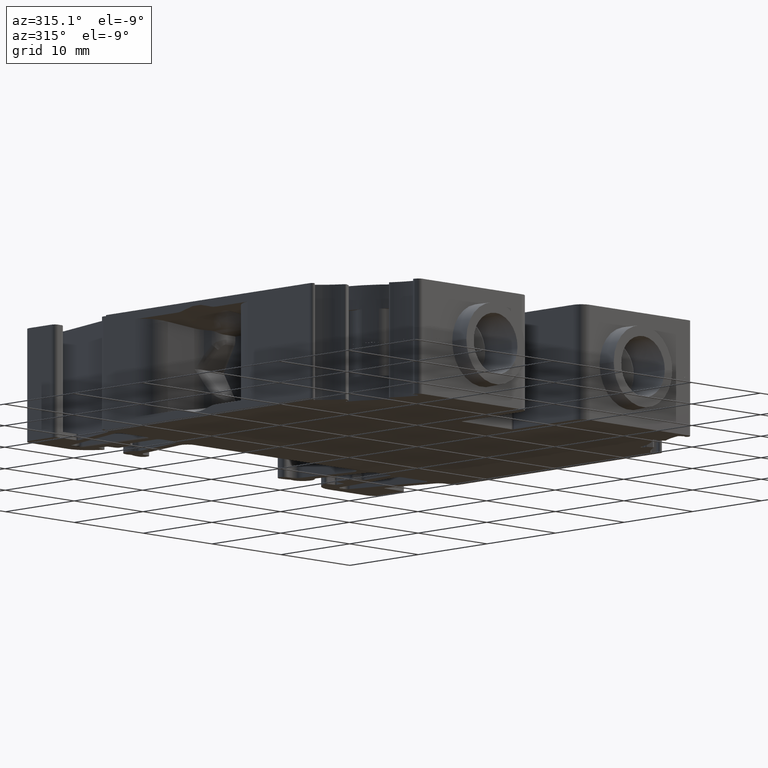
[diagram: clean part render]
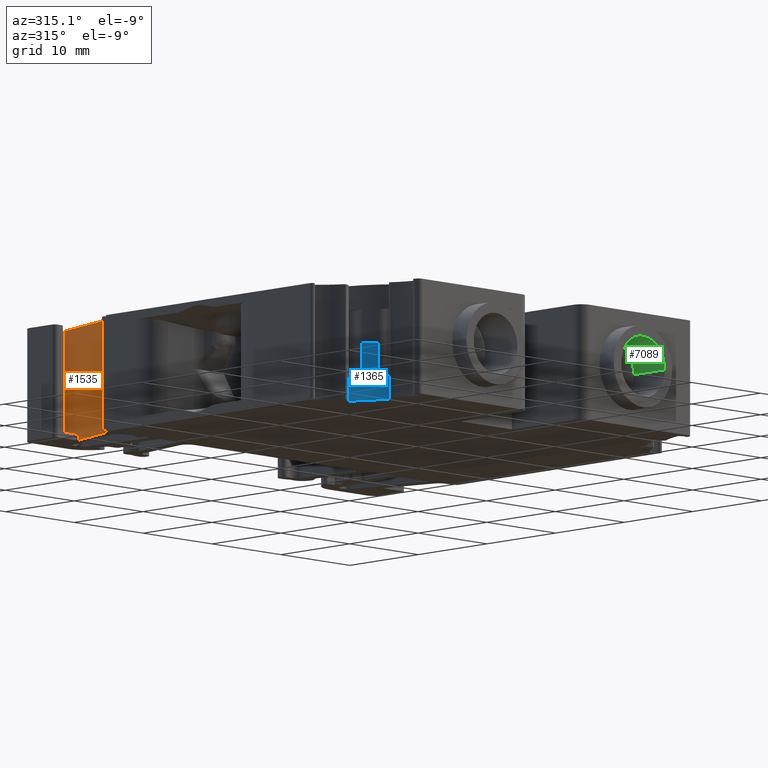
[diagram: same view with three faces highlighted in distinct colors, each labeled with its STEP entity id]
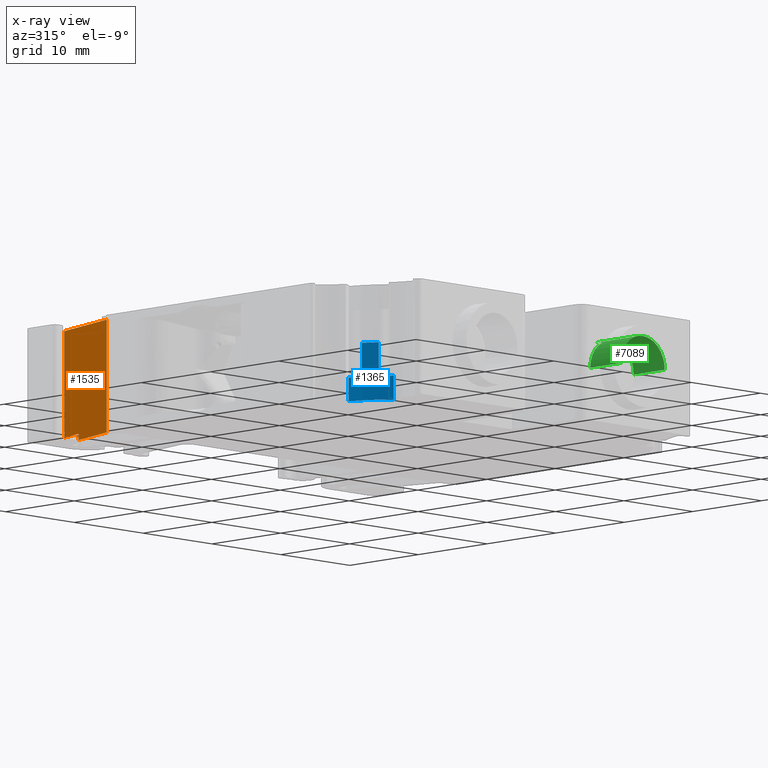
[diagram: x-ray of the same camera — body ghosted, the three highlighted faces saturated]
A machine part, auxiliary view with three faces highlighted in distinct colors.
The next image is the same camera in x-ray (body ghosted, the three faces saturated) — at least one of them is partly hidden behind the body in this view.
Their STEP definitions:

[orange] entity #1535 — the highlighted planar face has unit normal (-0.9659, 0.2588, 0).
#1535 = ADVANCED_FACE ( 'NONE', ( #15957 ), #15951, .T. ) ;
#4270 = ORIENTED_EDGE ( 'NONE', *, *, #15289, .T. ) ;
#4308 = ORIENTED_EDGE ( 'NONE', *, *, #6825, .T. ) ;
#4309 = ORIENTED_EDGE ( 'NONE', *, *, #15282, .F. ) ;
#4334 = ORIENTED_EDGE ( 'NONE', *, *, #6843, .T. ) ;
#4339 = ORIENTED_EDGE ( 'NONE', *, *, #6830, .T. ) ;
#4351 = ORIENTED_EDGE ( 'NONE', *, *, #6826, .T. ) ;
#5548 = CARTESIAN_POINT ( 'NONE',  ( -133.6935660778833600, 241.4713869252328200, -136.6333030996086400 ) ) ;
#5656 = CARTESIAN_POINT ( 'NONE',  ( -131.4353071450694300, 249.9004715235225500, -136.6333030996085500 ) ) ;
#5664 = CARTESIAN_POINT ( 'NONE',  ( -132.1914293156878800, 247.0782009458794700, -148.3828730903680700 ) ) ;
#5697 = CARTESIAN_POINT ( 'NONE',  ( -133.6935660778838400, 241.4713869252331100, -148.3828730903681800 ) ) ;
#6825 = EDGE_CURVE ( 'NONE', #7821, #7811, #13746, .T. ) ;
#6826 = EDGE_CURVE ( 'NONE', #7811, #9007, #13741, .T. ) ;
#6830 = EDGE_CURVE ( 'NONE', #8948, #7821, #13335, .T. ) ;
#6843 = EDGE_CURVE ( 'NONE', #9045, #8854, #13318, .T. ) ;
#7811 = VERTEX_POINT ( 'NONE', #9782 ) ;
#7821 = VERTEX_POINT ( 'NONE', #9811 ) ;
#8854 = VERTEX_POINT ( 'NONE', #5548 ) ;
#8948 = VERTEX_POINT ( 'NONE', #5656 ) ;
#9007 = VERTEX_POINT ( 'NONE', #5664 ) ;
#9045 = VERTEX_POINT ( 'NONE', #5697 ) ;
#9782 = CARTESIAN_POINT ( 'NONE',  ( -132.1914293156878800, 247.0782009458795600, -147.7307757436084900 ) ) ;
#9811 = CARTESIAN_POINT ( 'NONE',  ( -131.4353071450700800, 249.9004715235226400, -147.7307757436084000 ) ) ;
#12777 = B_SPLINE_CURVE_WITH_KNOTS ( 'NONE', 3,
 ( #19028, #19069, #19005, #19071 ),
 .UNSPECIFIED., .F., .F.,
 ( 4, 4 ),
 ( 0.0000000000000000000, 1.000000000000000000 ),
 .UNSPECIFIED. ) ;
#12799 = B_SPLINE_CURVE_WITH_KNOTS ( 'NONE', 3,
 ( #19111, #19107, #19172, #19130 ),
 .UNSPECIFIED., .F., .F.,
 ( 4, 4 ),
 ( 0.0000000000000000000, 1.000000000000000000 ),
 .UNSPECIFIED. ) ;
#13218 = VECTOR ( 'NONE', #13734, 1000.000000000000000 ) ;
#13220 = VECTOR ( 'NONE', #13333, 1000.000000000000000 ) ;
#13225 = VECTOR ( 'NONE', #13365, 1000.000000000000000 ) ;
#13227 = VECTOR ( 'NONE', #13737, 1000.000000000000000 ) ;
#13318 = LINE ( 'NONE', #13381, #13225 ) ;
#13333 = DIRECTION ( 'NONE',  ( -5.022720691121513300E-014, 1.345650732946167600E-014, -1.000000000000000000 ) ) ;
#13335 = LINE ( 'NONE', #13337, #13220 ) ;
#13337 = CARTESIAN_POINT ( 'NONE',  ( -131.4353071450694300, 249.9004715235225800, -135.1833561645780200 ) ) ;
#13365 = DIRECTION ( 'NONE',  ( 5.022720691121513300E-014, -1.345650732946167600E-014, 1.000000000000000000 ) ) ;
#13381 = CARTESIAN_POINT ( 'NONE',  ( -133.6935660778831900, 241.4713869252329300, -135.1833561645780200 ) ) ;
#13731 = CARTESIAN_POINT ( 'NONE',  ( -129.0966246622976100, 258.6297417632577000, -147.7307757436084000 ) ) ;
#13734 = DIRECTION ( 'NONE',  ( -0.2587861696880448500, -0.9659346346302064600, 0.0000000000000000000 ) ) ;
#13737 = DIRECTION ( 'NONE',  ( -5.022720691121513300E-014, 1.345650732946167600E-014, -1.000000000000000000 ) ) ;
#13741 = LINE ( 'NONE', #13744, #13227 ) ;
#13744 = CARTESIAN_POINT ( 'NONE',  ( -132.1914293156872900, 247.0782009458793300, -135.1833561645780200 ) ) ;
#13746 = LINE ( 'NONE', #13731, #13218 ) ;
#15282 = EDGE_CURVE ( 'NONE', #8948, #8854, #12777, .T. ) ;
#15289 = EDGE_CURVE ( 'NONE', #9007, #9045, #12799, .T. ) ;
#15951 = PLANE ( 'NONE',  #21408 ) ;
#15954 = DIRECTION ( 'NONE',  ( -0.9659346346302064600, 0.2587861696880448500, 5.199855674545086200E-014 ) ) ;
#15956 = DIRECTION ( 'NONE',  ( -0.2587861696880448500, -0.9659346346302064600, 0.0000000000000000000 ) ) ;
#15957 = FACE_OUTER_BOUND ( 'NONE', #23050, .T. ) ;
#15961 = CARTESIAN_POINT ( 'NONE',  ( -129.0966246622969900, 258.6297417632575300, -135.1833561645780200 ) ) ;
#19005 = CARTESIAN_POINT ( 'NONE',  ( -132.9408131002786600, 244.2810817913293400, -136.6333030996085800 ) ) ;
#19028 = CARTESIAN_POINT ( 'NONE',  ( -131.4353071450694300, 249.9004715235225500, -136.6333030996085500 ) ) ;
#19069 = CARTESIAN_POINT ( 'NONE',  ( -132.1880601226740700, 247.0907766574259500, -136.6333030996085500 ) ) ;
#19071 = CARTESIAN_POINT ( 'NONE',  ( -133.6935660778833600, 241.4713869252328200, -136.6333030996086400 ) ) ;
#19107 = CARTESIAN_POINT ( 'NONE',  ( -132.6921415697532600, 245.2092629389973700, -148.3828730903680400 ) ) ;
#19111 = CARTESIAN_POINT ( 'NONE',  ( -132.1914293156878800, 247.0782009458794700, -148.3828730903680700 ) ) ;
#19130 = CARTESIAN_POINT ( 'NONE',  ( -133.6935660778838400, 241.4713869252331100, -148.3828730903681800 ) ) ;
#19172 = CARTESIAN_POINT ( 'NONE',  ( -133.1928538238185500, 243.3403249321152100, -148.3828730903680400 ) ) ;
#21408 = AXIS2_PLACEMENT_3D ( 'NONE', #15961, #15954, #15956 ) ;
#23050 = EDGE_LOOP ( 'NONE', ( #4270, #4334, #4309, #4339, #4308, #4351 ) ) ;

[blue] entity #1365 — the highlighted cylindrical surface (partial cylindrical patch) has radius 9.9996 mm, axis along (0, -0, 1).
#1365 = ADVANCED_FACE ( 'NONE', ( #18831 ), #18924, .T. ) ;
#1836 = EDGE_CURVE ( 'NONE', #19870, #19928, #17587, .T. ) ;
#1885 = EDGE_CURVE ( 'NONE', #19994, #19992, #6077, .T. ) ;
#5261 = LINE ( 'NONE', #5340, #12184 ) ;
#5301 = CARTESIAN_POINT ( 'NONE',  ( -128.7352619783298700, 204.6265456572303400, -146.0329590922176200 ) ) ;
#5311 = CARTESIAN_POINT ( 'NONE',  ( -130.8317815261440000, 207.8359888491719700, -146.0329590922177100 ) ) ;
#5312 = CARTESIAN_POINT ( 'NONE',  ( -131.0124987620408500, 208.3210395603179000, -146.0329590922176800 ) ) ;
#5318 = CARTESIAN_POINT ( 'NONE',  ( -129.7204640400498800, 205.8188584333951500, -146.0329590922175700 ) ) ;
#5325 = CARTESIAN_POINT ( 'NONE',  ( -129.0937737448108700, 204.9977660591760000, -146.0329590922174200 ) ) ;
#5333 = DIRECTION ( 'NONE',  ( -4.390856063678060100E-014, 3.704122705312689700E-014, -1.000000000000000000 ) ) ;
#5334 = CARTESIAN_POINT ( 'NONE',  ( -129.4234870228982000, 205.3967921769739700, -146.0329590922174000 ) ) ;
#5337 = CARTESIAN_POINT ( 'NONE',  ( -130.6147430292575100, 207.3677690449685000, -146.0329590922177400 ) ) ;
#5340 = CARTESIAN_POINT ( 'NONE',  ( -131.1547364254577700, 208.8171282028865800, -163.5323186529236600 ) ) ;
#5341 = CARTESIAN_POINT ( 'NONE',  ( -131.1547364254568300, 208.8171282028859800, -146.0329590922176000 ) ) ;
#5411 = CARTESIAN_POINT ( 'NONE',  ( -129.7204640400496500, 205.8188584333949500, -142.5330871800785500 ) ) ;
#5412 = CARTESIAN_POINT ( 'NONE',  ( -129.7204640400498800, 205.8188584333951500, -146.0329590922175700 ) ) ;
#5434 = CARTESIAN_POINT ( 'NONE',  ( -131.1547364254568300, 208.8171282028859800, -146.0329590922176000 ) ) ;
#6074 = CARTESIAN_POINT ( 'NONE',  ( -128.7352619783309500, 204.6265456572311600, -163.5323186529239500 ) ) ;
#6077 = LINE ( 'NONE', #6074, #21784 ) ;
#6095 = DIRECTION ( 'NONE',  ( 4.390856063678060100E-014, -3.704122705312689700E-014, 1.000000000000000000 ) ) ;
#8471 = VERTEX_POINT ( 'NONE', #9944 ) ;
#8686 = VERTEX_POINT ( 'NONE', #5412 ) ;
#8691 = VERTEX_POINT ( 'NONE', #5411 ) ;
#8692 = VERTEX_POINT ( 'NONE', #5434 ) ;
#9944 = CARTESIAN_POINT ( 'NONE',  ( -131.1547364254568900, 208.8171282028861200, -148.5307464663934200 ) ) ;
#12007 = ORIENTED_EDGE ( 'NONE', *, *, #1836, .T. ) ;
#12008 = ORIENTED_EDGE ( 'NONE', *, *, #15113, .F. ) ;
#12013 = ORIENTED_EDGE ( 'NONE', *, *, #1885, .T. ) ;
#12023 = ORIENTED_EDGE ( 'NONE', *, *, #15082, .T. ) ;
#12027 = ORIENTED_EDGE ( 'NONE', *, *, #15090, .T. ) ;
#12038 = ORIENTED_EDGE ( 'NONE', *, *, #15611, .F. ) ;
#12045 = ORIENTED_EDGE ( 'NONE', *, *, #15108, .T. ) ;
#12048 = ORIENTED_EDGE ( 'NONE', *, *, #15084, .T. ) ;
#12184 = VECTOR ( 'NONE', #5333, 1000.000000000000000 ) ;
#12201 = VECTOR ( 'NONE', #19452, 1000.000000000000000 ) ;
#12677 = B_SPLINE_CURVE_WITH_KNOTS ( 'NONE', 3,
 ( #5337, #5311, #5312, #5341 ),
 .UNSPECIFIED., .F., .F.,
 ( 4, 4 ),
 ( 0.0000000000000000000, 1.000000000000000000 ),
 .UNSPECIFIED. ) ;
#12684 = B_SPLINE_CURVE_WITH_KNOTS ( 'NONE', 3,
 ( #19517, #19570, #19539, #19596 ),
 .UNSPECIFIED., .F., .F.,
 ( 4, 4 ),
 ( 0.0000000000000000000, 1.000000000000000000 ),
 .UNSPECIFIED. ) ;
#12710 = B_SPLINE_CURVE_WITH_KNOTS ( 'NONE', 3,
 ( #5301, #5325, #5334, #5318 ),
 .UNSPECIFIED., .F., .F.,
 ( 4, 4 ),
 ( 0.0000000000000000000, 1.000000000000000000 ),
 .UNSPECIFIED. ) ;
#13014 = B_SPLINE_CURVE_WITH_KNOTS ( 'NONE', 3,
 ( #21231, #21257, #21239, #21227, #21240, #21241 ),
 .UNSPECIFIED., .F., .F.,
 ( 4, 2, 4 ),
 ( 0.0000000000000000000, 0.5000000000000000000, 1.000000000000000000 ),
 .UNSPECIFIED. ) ;
#15082 = EDGE_CURVE ( 'NONE', #8692, #8471, #5261, .T. ) ;
#15084 = EDGE_CURVE ( 'NONE', #19992, #8686, #12710, .T. ) ;
#15090 = EDGE_CURVE ( 'NONE', #19928, #8692, #12677, .T. ) ;
#15108 = EDGE_CURVE ( 'NONE', #8686, #8691, #19495, .T. ) ;
#15113 = EDGE_CURVE ( 'NONE', #19870, #8691, #12684, .T. ) ;
#15611 = EDGE_CURVE ( 'NONE', #19994, #8471, #13014, .T. ) ;
#17587 = LINE ( 'NONE', #17592, #21712 ) ;
#17592 = CARTESIAN_POINT ( 'NONE',  ( -130.6147430292583400, 207.3677690449690900, -163.5323186529237500 ) ) ;
#17599 = DIRECTION ( 'NONE',  ( -4.390856063678060100E-014, 3.704122705312689700E-014, -1.000000000000000000 ) ) ;
#18831 = FACE_OUTER_BOUND ( 'NONE', #22859, .T. ) ;
#18835 = CARTESIAN_POINT ( 'NONE',  ( -121.5424021253281900, 211.5731597938290100, -163.5323186529240000 ) ) ;
#18837 = DIRECTION ( 'NONE',  ( 4.390856063678060100E-014, -3.704122705312689700E-014, 1.000000000000000000 ) ) ;
#18839 = DIRECTION ( 'NONE',  ( 1.000000000000000000, 0.0000000000000000000, -4.441054625694144400E-014 ) ) ;
#18924 = CYLINDRICAL_SURFACE ( 'NONE', #21840, 9.999634034689467700 ) ;
#19427 = CARTESIAN_POINT ( 'NONE',  ( -129.7204640400507600, 205.8188584333956900, -163.5323186529238600 ) ) ;
#19452 = DIRECTION ( 'NONE',  ( 4.390856063678060100E-014, -3.704122705312689700E-014, 1.000000000000000000 ) ) ;
#19495 = LINE ( 'NONE', #19427, #12201 ) ;
#19517 = CARTESIAN_POINT ( 'NONE',  ( -130.6147430292573100, 207.3677690449683800, -142.5330871800785000 ) ) ;
#19539 = CARTESIAN_POINT ( 'NONE',  ( -130.0648020898454400, 206.3084619277980500, -142.5330871800796600 ) ) ;
#19570 = CARTESIAN_POINT ( 'NONE',  ( -130.3628950862479900, 206.8247654649892100, -142.5330871800796000 ) ) ;
#19596 = CARTESIAN_POINT ( 'NONE',  ( -129.7204640400496500, 205.8188584333949500, -142.5330871800785500 ) ) ;
#19870 = VERTEX_POINT ( 'NONE', #20048 ) ;
#19928 = VERTEX_POINT ( 'NONE', #20101 ) ;
#19992 = VERTEX_POINT ( 'NONE', #20077 ) ;
#19994 = VERTEX_POINT ( 'NONE', #20083 ) ;
#20048 = CARTESIAN_POINT ( 'NONE',  ( -130.6147430292573100, 207.3677690449683800, -142.5330871800785000 ) ) ;
#20077 = CARTESIAN_POINT ( 'NONE',  ( -128.7352619783298700, 204.6265456572303400, -146.0329590922176200 ) ) ;
#20083 = CARTESIAN_POINT ( 'NONE',  ( -128.7352619783302100, 204.6265456572307100, -148.5307464663936200 ) ) ;
#20101 = CARTESIAN_POINT ( 'NONE',  ( -130.6147430292575100, 207.3677690449685000, -146.0329590922177400 ) ) ;
#21227 = CARTESIAN_POINT ( 'NONE',  ( -130.6111648378573000, 207.2812605172550800, -148.5307464663935100 ) ) ;
#21231 = CARTESIAN_POINT ( 'NONE',  ( -128.7352619783302100, 204.6265456572307100, -148.5307464663936200 ) ) ;
#21239 = CARTESIAN_POINT ( 'NONE',  ( -129.7934411609824400, 205.8652995375705100, -148.5307464663935900 ) ) ;
#21240 = CARTESIAN_POINT ( 'NONE',  ( -130.9286426465362800, 208.0292099090795500, -148.5307464663934800 ) ) ;
#21241 = CARTESIAN_POINT ( 'NONE',  ( -131.1547364254568900, 208.8171282028861200, -148.5307464663934200 ) ) ;
#21257 = CARTESIAN_POINT ( 'NONE',  ( -129.3040719919768800, 205.2157725092261600, -148.5307464663936500 ) ) ;
#21712 = VECTOR ( 'NONE', #17599, 1000.000000000000000 ) ;
#21784 = VECTOR ( 'NONE', #6095, 1000.000000000000000 ) ;
#21840 = AXIS2_PLACEMENT_3D ( 'NONE', #18835, #18837, #18839 ) ;
#22859 = EDGE_LOOP ( 'NONE', ( #12007, #12027, #12023, #12038, #12013, #12048, #12045, #12008 ) ) ;

[green] entity #7089 — the highlighted cylindrical surface (edge-blend (fillet) strip) has radius 3.1619 mm, axis along (0, -1, 0).
#290 = VECTOR ( 'NONE', #13601, 1000.000000000000000 ) ;
#1951 = CARTESIAN_POINT ( 'NONE',  ( -101.7643791214251200, 197.9292167493914900, -140.6055687360344300 ) ) ;
#1952 = CARTESIAN_POINT ( 'NONE',  ( -101.3022267257416000, 197.9292167493916000, -140.1431159924823600 ) ) ;
#1957 = CARTESIAN_POINT ( 'NONE',  ( -102.2735240629053500, 197.9292167493915400, -141.6991826197455300 ) ) ;
#1958 = CARTESIAN_POINT ( 'NONE',  ( -101.0526971840279800, 197.9292167493915100, -139.9394899580003700 ) ) ;
#1959 = CARTESIAN_POINT ( 'NONE',  ( -100.7292860335864200, 197.9292167493915400, -139.7502268413694000 ) ) ;
#1962 = CARTESIAN_POINT ( 'NONE',  ( -102.1704014743292100, 197.9292167493915700, -141.3945332551252000 ) ) ;
#1979 = CARTESIAN_POINT ( 'NONE',  ( -102.3822543640268100, 197.9292167493915400, -142.3318802955768100 ) ) ;
#1981 = CARTESIAN_POINT ( 'NONE',  ( -102.2209848961632200, 197.9292167493915100, -141.5334002532049500 ) ) ;
#1985 = CARTESIAN_POINT ( 'NONE',  ( -102.0000417326700100, 197.9292167493915400, -140.9638415567955600 ) ) ;
#1996 = CARTESIAN_POINT ( 'NONE',  ( -102.3544061472917400, 197.9292167493914900, -142.0354890408572700 ) ) ;
#2004 = CARTESIAN_POINT ( 'NONE',  ( -102.3823846044423100, 197.9292167493914900, -142.5330871800796900 ) ) ;
#2005 = CARTESIAN_POINT ( 'NONE',  ( -102.1958756551561000, 197.9292167493915400, -141.4628587055478600 ) ) ;
#2007 = CARTESIAN_POINT ( 'NONE',  ( -102.1785600599823600, 197.9292167493915400, -141.4159439044439400 ) ) ;
#2008 = CARTESIAN_POINT ( 'NONE',  ( -96.05879072089761900, 197.9292167493915400, -142.1299731771328800 ) ) ;
#2013 = CARTESIAN_POINT ( 'NONE',  ( -96.35504052592702400, 197.9292167493915100, -141.1940372867228500 ) ) ;
#2014 = CARTESIAN_POINT ( 'NONE',  ( -100.4349686885171600, 197.9292167493916000, -139.6135891255282500 ) ) ;
#2015 = CARTESIAN_POINT ( 'NONE',  ( -100.4850147280773300, 197.9292167493915400, -139.6348766433487500 ) ) ;
#2016 = CARTESIAN_POINT ( 'NONE',  ( -102.3823846044423100, 197.9292167493914900, -142.5330871800796900 ) ) ;
#2017 = CARTESIAN_POINT ( 'NONE',  ( -100.0112052042041700, 197.9292167493915700, -139.4452917511708000 ) ) ;
#2018 = CARTESIAN_POINT ( 'NONE',  ( -96.83048609518685600, 197.9292167493914900, -140.4513176740080400 ) ) ;
#2019 = CARTESIAN_POINT ( 'NONE',  ( -96.43759695393693200, 197.9292167493915400, -141.0242583563024500 ) ) ;
#2020 = CARTESIAN_POINT ( 'NONE',  ( -100.4076672805707500, 197.9292167493915100, -139.6024061411903900 ) ) ;
#2021 = CARTESIAN_POINT ( 'NONE',  ( -96.30103108013112500, 197.9292167493914900, -141.3186237907880500 ) ) ;
#2022 = CARTESIAN_POINT ( 'NONE',  ( -102.3820322361792400, 197.9317665522974300, -142.5330871802992500 ) ) ;
#2024 = CARTESIAN_POINT ( 'NONE',  ( -100.5595071204216300, 197.9292167493915400, -139.6676704306199800 ) ) ;
#2025 = CARTESIAN_POINT ( 'NONE',  ( -96.13279215135996500, 197.9292167493915100, -141.7420102668867200 ) ) ;
#2026 = CARTESIAN_POINT ( 'NONE',  ( -96.29067482103566500, 197.9292167493914900, -141.3438390365977900 ) ) ;
#2027 = CARTESIAN_POINT ( 'NONE',  ( -98.22114828202073500, 197.9292167493915700, -139.5324100336434900 ) ) ;
#2029 = CARTESIAN_POINT ( 'NONE',  ( -97.29293874405270500, 197.9292167493916000, -139.9891653729849600 ) ) ;
#2030 = CARTESIAN_POINT ( 'NONE',  ( -96.31678109622454500, 197.9292167493915100, -141.2809450890073600 ) ) ;
#2031 = CARTESIAN_POINT ( 'NONE',  ( -97.65121162491054500, 197.9292167493915100, -139.7535027016826100 ) ) ;
#2043 = CARTESIAN_POINT ( 'NONE',  ( -98.38720061832822200, 197.9292167493915400, -139.4797640801177700 ) ) ;
#2044 = CARTESIAN_POINT ( 'NONE',  ( -99.01974402572140800, 197.9292167493916000, -139.3710948000157500 ) ) ;
#2045 = CARTESIAN_POINT ( 'NONE',  ( -99.62188370222345700, 197.9292167493915100, -139.3712898805535800 ) ) ;
#2047 = CARTESIAN_POINT ( 'NONE',  ( -96.62686008437640300, 197.9292167493914600, -140.7008471920563900 ) ) ;
#2048 = CARTESIAN_POINT ( 'NONE',  ( -98.10343353362577500, 197.9292167493915400, -139.5749370800315300 ) ) ;
#2049 = CARTESIAN_POINT ( 'NONE',  ( -102.3823846044423500, 197.9300666836934700, -142.5330871800800000 ) ) ;
#2050 = CARTESIAN_POINT ( 'NONE',  ( -98.72372301525349800, 197.9292167493914600, -139.3987965663045000 ) ) ;
#2051 = CARTESIAN_POINT ( 'NONE',  ( -96.05852989800331400, 197.9292167493839000, -142.5330871800800000 ) ) ;
#2061 = CARTESIAN_POINT ( 'NONE',  ( -98.15045632263645800, 197.9292167493915700, -139.5575787701443200 ) ) ;
#2062 = CARTESIAN_POINT ( 'NONE',  ( -102.3823846044423500, 197.9309166179954800, -142.5330871800800000 ) ) ;
#2063 = CARTESIAN_POINT ( 'NONE',  ( -98.08190332645662600, 197.9292167493916300, -139.5831429567840000 ) ) ;
#2064 = CARTESIAN_POINT ( 'NONE',  ( -96.28515112807878000, 197.9292167493915100, -141.3575480800431000 ) ) ;
#2383 = CARTESIAN_POINT ( 'NONE',  ( -100.3180410546325600, 202.4385545532789800, -139.5472184326289100 ) ) ;
#2385 = CARTESIAN_POINT ( 'NONE',  ( -100.6437967461935000, 202.4385742602464700, -139.6880931377683600 ) ) ;
#2388 = CARTESIAN_POINT ( 'NONE',  ( -101.2316977013457500, 202.4386137443237000, -140.0684486456396200 ) ) ;
#2390 = CARTESIAN_POINT ( 'NONE',  ( -101.4937243029983000, 202.4386335214611300, -140.3078527561546000 ) ) ;
#2391 = CARTESIAN_POINT ( 'NONE',  ( -101.9254874852119500, 202.4386731505919100, -140.8591390691490800 ) ) ;
#2393 = CARTESIAN_POINT ( 'NONE',  ( -102.3235524403377100, 202.4387327800235700, -141.8328772746714600 ) ) ;
#2396 = CARTESIAN_POINT ( 'NONE',  ( -102.3822724279298200, 202.4387527054401200, -142.1829399201677700 ) ) ;
#2397 = CARTESIAN_POINT ( 'NONE',  ( -102.3820114672621700, 202.4386267648183900, -142.5330871801523600 ) ) ;
#2401 = CARTESIAN_POINT ( 'NONE',  ( -99.97815813110652500, 202.4385348762515400, -139.4632868667835600 ) ) ;
#2413 = CARTESIAN_POINT ( 'NONE',  ( -102.0951368930208800, 202.4386930025913800, -141.1709100744236000 ) ) ;
#4373 = ORIENTED_EDGE ( 'NONE', *, *, #6736, .F. ) ;
#4387 = ORIENTED_EDGE ( 'NONE', *, *, #6873, .F. ) ;
#4430 = ORIENTED_EDGE ( 'NONE', *, *, #6847, .T. ) ;
#4431 = ORIENTED_EDGE ( 'NONE', *, *, #6805, .F. ) ;
#4446 = ORIENTED_EDGE ( 'NONE', *, *, #6734, .F. ) ;
#4450 = ORIENTED_EDGE ( 'NONE', *, *, #6912, .T. ) ;
#4452 = ORIENTED_EDGE ( 'NONE', *, *, #6844, .F. ) ;
#4455 = ORIENTED_EDGE ( 'NONE', *, *, #6883, .F. ) ;
#4465 = ORIENTED_EDGE ( 'NONE', *, *, #6861, .T. ) ;
#6734 = EDGE_CURVE ( 'NONE', #7688, #7721, #12449, .T. ) ;
#6736 = EDGE_CURVE ( 'NONE', #7756, #7688, #12415, .T. ) ;
#6805 = EDGE_CURVE ( 'NONE', #7861, #7871, #12417, .T. ) ;
#6844 = EDGE_CURVE ( 'NONE', #19806, #7779, #12431, .T. ) ;
#6847 = EDGE_CURVE ( 'NONE', #7786, #7779, #13384, .T. ) ;
#6861 = EDGE_CURVE ( 'NONE', #7796, #7786, #12434, .T. ) ;
#6873 = EDGE_CURVE ( 'NONE', #7721, #19806, #13441, .T. ) ;
#6883 = EDGE_CURVE ( 'NONE', #7871, #7756, #12437, .T. ) ;
#6912 = EDGE_CURVE ( 'NONE', #7861, #7796, #13617, .T. ) ;
#7089 = ADVANCED_FACE ( 'NONE', ( #9008 ), #8998, .F. ) ;
#7688 = VERTEX_POINT ( 'NONE', #9632 ) ;
#7721 = VERTEX_POINT ( 'NONE', #9724 ) ;
#7756 = VERTEX_POINT ( 'NONE', #9741 ) ;
#7779 = VERTEX_POINT ( 'NONE', #9734 ) ;
#7786 = VERTEX_POINT ( 'NONE', #9684 ) ;
#7796 = VERTEX_POINT ( 'NONE', #9692 ) ;
#7861 = VERTEX_POINT ( 'NONE', #9772 ) ;
#7871 = VERTEX_POINT ( 'NONE', #9790 ) ;
#8998 = CYLINDRICAL_SURFACE ( 'NONE', #12162, 3.161927353219518000 ) ;
#9008 = FACE_OUTER_BOUND ( 'NONE', #23087, .T. ) ;
#9013 = DIRECTION ( 'NONE',  ( 0.0000000000000000000, -1.755611215252482300E-014, -1.000000000000000000 ) ) ;
#9023 = CARTESIAN_POINT ( 'NONE',  ( -99.22045725122282500, 207.9292167493914900, -142.5330871800814200 ) ) ;
#9039 = DIRECTION ( 'NONE',  ( 3.176928786114649900E-030, -1.000000000000000000, 2.003584069927250300E-014 ) ) ;
#9632 = CARTESIAN_POINT ( 'NONE',  ( -102.3823846044423100, 197.9292167493914900, -142.5330871800796900 ) ) ;
#9684 = CARTESIAN_POINT ( 'NONE',  ( -98.47816335548751000, 203.9087970924568400, -139.4595250368315400 ) ) ;
#9692 = CARTESIAN_POINT ( 'NONE',  ( -99.97815871739757700, 203.9087959436726900, -139.4632869213016900 ) ) ;
#9724 = CARTESIAN_POINT ( 'NONE',  ( -96.05852989800331400, 197.9292167493839000, -142.5330871800800000 ) ) ;
#9734 = CARTESIAN_POINT ( 'NONE',  ( -98.47816280214797800, 202.4383650580389500, -139.4595251524452000 ) ) ;
#9741 = CARTESIAN_POINT ( 'NONE',  ( -102.3820322361792400, 197.9317665522974300, -142.5330871802992500 ) ) ;
#9772 = CARTESIAN_POINT ( 'NONE',  ( -99.97815813110652500, 202.4385348762515400, -139.4632868667835600 ) ) ;
#9790 = CARTESIAN_POINT ( 'NONE',  ( -102.3820114672621700, 202.4386267648183900, -142.5330871801523600 ) ) ;
#12162 = AXIS2_PLACEMENT_3D ( 'NONE', #9023, #9039, #9013 ) ;
#12415 = B_SPLINE_CURVE_WITH_KNOTS ( 'NONE', 3,
 ( #2022, #2062, #2049, #2016 ),
 .UNSPECIFIED., .F., .F.,
 ( 4, 4 ),
 ( 0.0000000000000000000, 1.000000000000000000 ),
 .UNSPECIFIED. ) ;
#12417 = B_SPLINE_CURVE_WITH_KNOTS ( 'NONE', 3,
 ( #2401, #2383, #2385, #2388, #2390, #2391, #2413, #2393, #2396, #2397 ),
 .UNSPECIFIED., .F., .F.,
 ( 4, 2, 2, 2, 4 ),
 ( 0.0000000000000000000, 0.2500000000000000000, 0.5000000000000000000, 0.7500000000000000000, 1.000000000000000000 ),
 .UNSPECIFIED. ) ;
#12431 = B_SPLINE_CURVE_WITH_KNOTS ( 'NONE', 3,
 ( #13383, #13350, #13377, #13357, #13374, #13355, #13364, #13382, #13354, #13385 ),
 .UNSPECIFIED., .F., .F.,
 ( 4, 2, 2, 2, 4 ),
 ( 0.0000000000000000000, 0.2500000000000000000, 0.5000000000000000000, 0.7500000000000000000, 1.000000000000000000 ),
 .UNSPECIFIED. ) ;
#12434 = B_SPLINE_CURVE_WITH_KNOTS ( 'NONE', 3,
 ( #13401, #13406, #13402, #13405 ),
 .UNSPECIFIED., .F., .F.,
 ( 4, 4 ),
 ( 0.0000000000000000000, 1.000000000000000000 ),
 .UNSPECIFIED. ) ;
#12437 = B_SPLINE_CURVE_WITH_KNOTS ( 'NONE', 3,
 ( #13529, #13499, #13515, #13513 ),
 .UNSPECIFIED., .F., .F.,
 ( 4, 4 ),
 ( 0.0000000000000000000, 1.000000000000000000 ),
 .UNSPECIFIED. ) ;
#12449 = B_SPLINE_CURVE_WITH_KNOTS ( 'NONE', 3,
 ( #2004, #1979, #1996, #1957, #1981, #2005, #2007, #1962, #1985, #1951, #1952, #1958, #1959, #2024, #2015, #2014, #2020, #2017, #2045, #2044, #2050, #2043, #2027, #2061, #2048, #2063, #2031, #2029, #2018, #2047, #2019, #2013, #2030, #2021, #2026, #2064, #2025, #2008, #2051 ),
 .UNSPECIFIED., .F., .F.,
 ( 4, 1, 1, 1, 2, 2, 2, 1, 1, 1, 2, 2, 2, 1, 1, 1, 2, 2, 2, 1, 1, 1, 1, 2, 2, 4 ),
 ( 0.0000000000000000000, 0.06250000000005338800, 0.09375000000008007500, 0.1093750000000928100, 0.1171875000000943600, 0.1250000000000959000, 0.2500000000001089100, 0.3125000000001154100, 0.3437500000001203500, 0.3593750000001210100, 0.3671875000001213500, 0.3750000000001216800, 0.5000000000001296700, 0.5625000000001336700, 0.5937500000001334500, 0.6093750000001355600, 0.6171875000001351100, 0.6250000000001346700, 0.7500000000001665300, 0.8125000000001825200, 0.8437500000001905100, 0.8593750000001935100, 0.8671875000001921800, 0.8710937500001870700, 0.8750000000001819700, 1.000000000000000000 ),
 .UNSPECIFIED. ) ;
#13226 = VECTOR ( 'NONE', #13347, 1000.000000000000000 ) ;
#13273 = VECTOR ( 'NONE', #13430, 1000.000000000000000 ) ;
#13347 = DIRECTION ( 'NONE',  ( 4.021018564702337700E-007, -0.9999999999999191800, 1.106156605224757300E-009 ) ) ;
#13350 = CARTESIAN_POINT ( 'NONE',  ( -96.05848187191442400, 202.4381138070262100, -142.1816595094926800 ) ) ;
#13354 = CARTESIAN_POINT ( 'NONE',  ( -98.13648194641375300, 202.4383421764654800, -139.5420105383879000 ) ) ;
#13355 = CARTESIAN_POINT ( 'NONE',  ( -96.95325435601503700, 202.4382507906656800, -140.3010766740992200 ) ) ;
#13357 = CARTESIAN_POINT ( 'NONE',  ( -96.34758784374292900, 202.4381823045831400, -141.1660860949685900 ) ) ;
#13358 = CARTESIAN_POINT ( 'NONE',  ( -98.47816339450156400, 203.9087980538689900, -139.4595250454621000 ) ) ;
#13364 = CARTESIAN_POINT ( 'NONE',  ( -97.21708578671533000, 202.4382736242080800, -140.0615489707414600 ) ) ;
#13374 = CARTESIAN_POINT ( 'NONE',  ( -96.51846082354150300, 202.4382051308860500, -140.8534019062566600 ) ) ;
#13377 = CARTESIAN_POINT ( 'NONE',  ( -96.11757481522308000, 202.4381366426806000, -141.8302830286053200 ) ) ;
#13382 = CARTESIAN_POINT ( 'NONE',  ( -97.80876024206253300, 202.4383193170733400, -139.6819769414260900 ) ) ;
#13383 = CARTESIAN_POINT ( 'NONE',  ( -96.05852989800337100, 202.4380909603421800, -142.5330871800801200 ) ) ;
#13384 = LINE ( 'NONE', #13358, #13226 ) ;
#13385 = CARTESIAN_POINT ( 'NONE',  ( -98.47816280214797800, 202.4383650580389500, -139.4595251524452000 ) ) ;
#13401 = CARTESIAN_POINT ( 'NONE',  ( -99.97815871739757700, 203.9087959436726900, -139.4632869213016900 ) ) ;
#13402 = CARTESIAN_POINT ( 'NONE',  ( -98.96886700398246700, 203.9087969258975200, -139.3410155213958000 ) ) ;
#13405 = CARTESIAN_POINT ( 'NONE',  ( -98.47816335548751000, 203.9087970924568400, -139.4595250368315400 ) ) ;
#13406 = CARTESIAN_POINT ( 'NONE',  ( -99.48805570133617900, 203.9087969258975200, -139.3423176496722800 ) ) ;
#13430 = DIRECTION ( 'NONE',  ( -3.176928786114649900E-030, 1.000000000000000000, -2.003584069927250300E-014 ) ) ;
#13441 = LINE ( 'NONE', #13457, #13273 ) ;
#13457 = CARTESIAN_POINT ( 'NONE',  ( -96.05852989800331400, 207.9292167493914900, -142.5330871800802000 ) ) ;
#13499 = CARTESIAN_POINT ( 'NONE',  ( -102.3816384128263900, 200.9363400273914500, -142.5330871805738600 ) ) ;
#13513 = CARTESIAN_POINT ( 'NONE',  ( -102.3820322361792400, 197.9317665522974300, -142.5330871802992500 ) ) ;
#13515 = CARTESIAN_POINT ( 'NONE',  ( -102.3816384128263900, 199.4340532898444600, -142.5330871805739400 ) ) ;
#13529 = CARTESIAN_POINT ( 'NONE',  ( -102.3820114672621700, 202.4386267648183900, -142.5330871801523600 ) ) ;
#13600 = CARTESIAN_POINT ( 'NONE',  ( -99.97815872169373100, 203.9087974507139900, -139.4632868682653600 ) ) ;
#13601 = DIRECTION ( 'NONE',  ( -4.021018564702337700E-007, 0.9999999999999191800, -1.106156605224757300E-009 ) ) ;
#13617 = LINE ( 'NONE', #13600, #290 ) ;
#19806 = VERTEX_POINT ( 'NONE', #20059 ) ;
#20059 = CARTESIAN_POINT ( 'NONE',  ( -96.05852989800337100, 202.4380909603421800, -142.5330871800801200 ) ) ;
#23087 = EDGE_LOOP ( 'NONE', ( #4387, #4446, #4373, #4455, #4431, #4450, #4465, #4430, #4452 ) ) ;